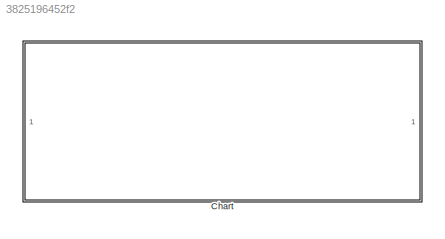
MODEL slx_3825196452f2
KIND model
CONFIG AbsTol = auto
CONFIG FixedStep = auto
CONFIG MaxStep = auto
CONFIG MinStep = auto
CONFIG RelTol = 1e-3
CONFIG SampleTimeConstraint = Unconstrained
CONFIG Solver = ode45
CONFIG SolverMode = Auto
CONFIG SolverName = ode45
CONFIG StartTime = 0.0
CONFIG StopTime = 10.0
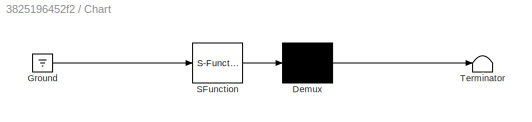
BLOCK [SubSystem] Chart
  ErrorFcn = Stateflow.Translate.translate
  PermitHierarchicalResolution = ExplicitOnly
  Ports = []
  RequestExecContextInheritance = off
  SFBlockType = Chart
  TreatAsAtomicUnit = on
BLOCK [Demux] Chart/ Demux 
  Outputs = 1
  Ports = [1, 1]
BLOCK [Ground] Chart/ Ground 
BLOCK [S-Function] Chart/ SFunction 
  EnableBusSupport = on
  FunctionName = sf_sfun
  PortCounts = [1 1]
  Ports = [1, 1]
  Tag = Stateflow S-Function Automaton 3
BLOCK [Terminator] Chart/ Terminator 
CHART Chart states=6 transitions=6
  STATE_LABEL 'Robot'
  STATE_LABEL 'Rotation\nentry: kp=0.1;\n kg=0.001;\n'
  STATE_LABEL 'Line_Follower\nentry: kp=0.001;\n kg=0.1;'
  STATE_LABEL 'Idle\nentry: kp=0;\n Kg=0;'
  STATE_LABEL 'theta_error < 1°'
  STATE_LABEL '[sqrt((xg-x)^2+(yg-y)^2) > 10]'
  STATE_LABEL '[sqrt((xg-x)^2+(yg-y)^2) < 5]'
  STATE_LABEL 'Rotation\nentry: kp=0.1;\n kg=0.001;\n'
  STATE_LABEL 'Line_Follower\nentry: kp=0.001;\n kg=0.1;'
  STATE_LABEL 'Idle\nentry: kp=0;\n Kg=0;'
  STATE_LABEL 'X_goal'
  STATE_LABEL 'Y_goal'
